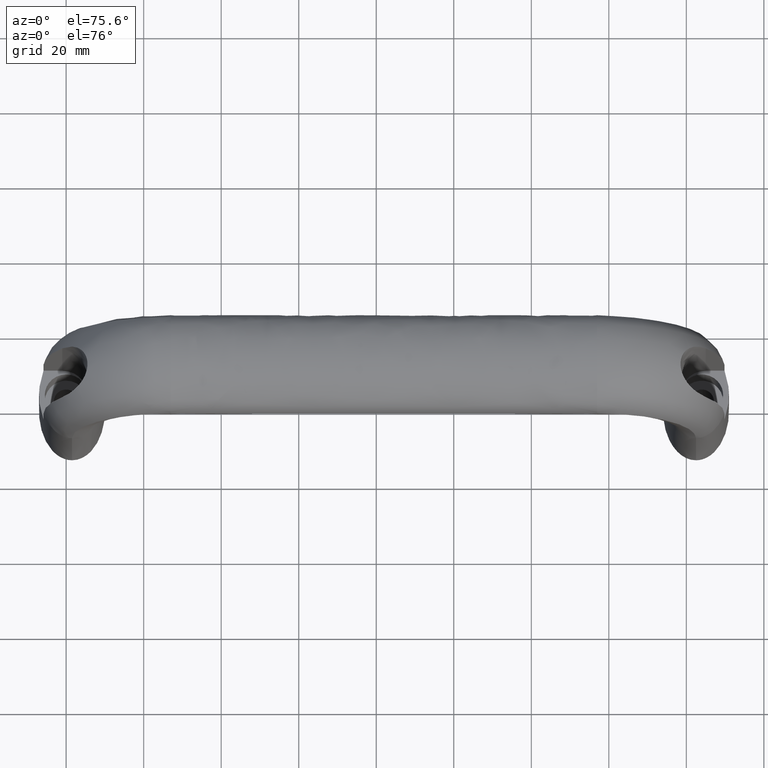
[diagram: clean part render]
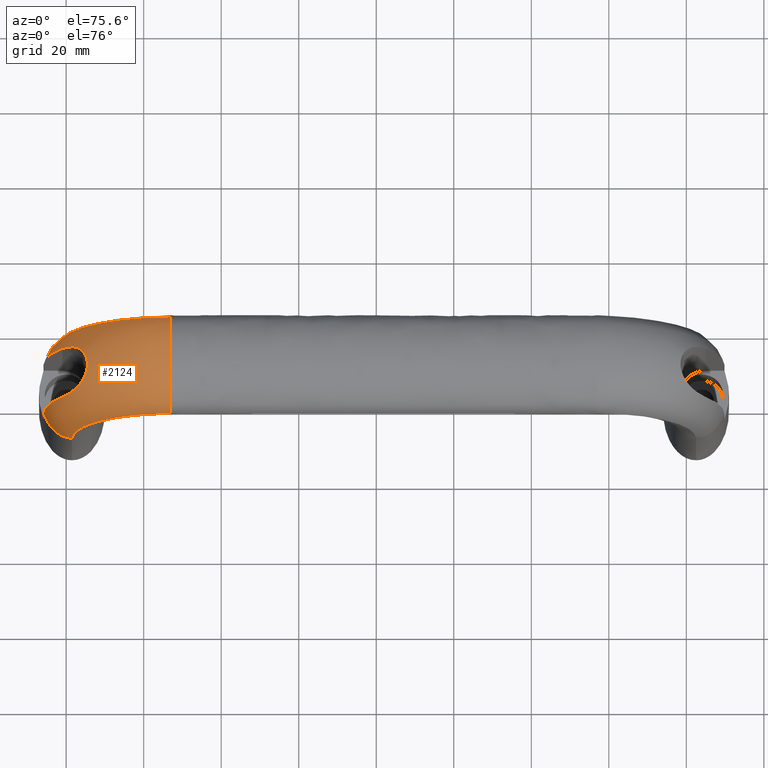
[diagram: same view with one face highlighted and labeled with its STEP entity id]
A machine part, auxiliary view. The second image highlights one B-rep face of the part: STEP entity #2124.
In plain terms, the highlighted face is a freeform B-spline surface patch.
Its self-contained STEP definition (entity closure, byte-faithful):
#1024=CARTESIAN_POINT('',(27.0,11.762630262052349,52.119074295047028));
#1025=VERTEX_POINT('',#1024);
#1035=CARTESIAN_POINT('',(27.0,-13.0,48.499999999999851));
#1036=VERTEX_POINT('',#1035);
#1037=CARTESIAN_POINT('',(27.0,11.762630262052349,52.119074295047028));
#1038=CARTESIAN_POINT('',(27.0,11.124518000685439,53.004805718184997));
#1039=CARTESIAN_POINT('',(27.0,10.251275255637010,53.818058382254627));
#1040=CARTESIAN_POINT('',(27.0,6.785826563922671,56.083928680683300));
#1041=CARTESIAN_POINT('',(27.0,3.403392041388941,57.0));
#1042=CARTESIAN_POINT('',(27.0,-3.403392041388945,57.0));
#1043=CARTESIAN_POINT('',(27.0,-6.785826563922671,56.083928680683300));
#1044=CARTESIAN_POINT('',(27.0,-10.395668951176340,53.723647119786612));
#1045=CARTESIAN_POINT('',(27.0,-11.359223048605340,52.780761333152498));
#1046=CARTESIAN_POINT('',(27.0,-12.661644796688099,50.724857017053687));
#1047=CARTESIAN_POINT('',(27.0,-13.0,49.612647398146201));
#1048=CARTESIAN_POINT('',(27.0,-13.0,48.499999999999851));
#1049=B_SPLINE_CURVE_WITH_KNOTS('',3,(#1037,#1038,#1039,#1040,#1041,#1042,#1043,#1044,#1045,#1046,#1047,#1048),.UNSPECIFIED.,.F.,.U.,(4,2,2,2,2,4),(0.570000000002555,0.625000000000000,0.750000000000000,0.875000000000000,0.937500000000000,1.0),.UNSPECIFIED.);
#1050=EDGE_CURVE('',#1025,#1036,#1049,.T.);
#1884=CARTESIAN_POINT('',(-2.015191606014526,11.837472741522920,22.772077983699070));
#1885=CARTESIAN_POINT('',(-2.941021045888543,11.192472187315589,22.764805348504989));
#1886=CARTESIAN_POINT('',(-3.790993518495217,10.292674817952870,22.758128589870520));
#1887=CARTESIAN_POINT('',(-6.083931553843240,6.785826548948687,22.740116955034889));
#1888=CARTESIAN_POINT('',(-7.000002992487918,3.403392041388941,22.732920971562841));
#1889=CARTESIAN_POINT('',(-7.000002992487918,-3.403392041388945,22.732920971562841));
#1890=CARTESIAN_POINT('',(-6.083931558394705,-6.785826563922671,22.740116954999131));
#1891=CARTESIAN_POINT('',(-3.723732224238013,-10.395615917115970,22.758656945130522));
#1892=CARTESIAN_POINT('',(-1.805021497206521,-12.356194588008250,22.773728925489920));
#1893=CARTESIAN_POINT('',(0.464058424733372,-13.022925095358231,22.791553148645111));
#1894=CARTESIAN_POINT('',(1.614823328544868,-13.0,22.800592711469768));
#1895=CARTESIAN_POINT('',(-2.045117619758962,11.837472741522920,26.646403690160689));
#1896=CARTESIAN_POINT('',(-2.971901381608391,11.192472187315589,26.762754728256841));
#1897=CARTESIAN_POINT('',(-3.822749962073325,10.292674817952870,26.869572652811271));
#1898=CARTESIAN_POINT('',(-6.118051377673653,6.785826548948687,27.157731257063421));
#1899=CARTESIAN_POINT('',(-7.035067006048025,3.403392041388941,27.272855984518650));
#1900=CARTESIAN_POINT('',(-7.035067006048025,-3.403392041388945,27.272855984518650));
#1901=CARTESIAN_POINT('',(-6.118051382230450,-6.785826563922671,27.157731257635849));
#1902=CARTESIAN_POINT('',(-3.755419339197669,-10.395615917115970,26.861119776892810));
#1903=CARTESIAN_POINT('',(-1.834730905786406,-12.356194588008250,26.619991147121699));
#1904=CARTESIAN_POINT('',(0.436688010049936,-13.022925095358231,26.334830842105770));
#1905=CARTESIAN_POINT('',(1.588639186175513,-13.0,26.190211664374949));
#1906=CARTESIAN_POINT('',(-0.547606563066964,11.837472741522911,34.327903146925699));
#1907=CARTESIAN_POINT('',(-1.426607829224392,11.192472187315589,34.689358840945012));
#1908=CARTESIAN_POINT('',(-2.233588957478176,10.292674817952870,35.021199001502303));
#1909=CARTESIAN_POINT('',(-4.410550916136987,6.785826548948689,35.916391434545908));
#1910=CARTESIAN_POINT('',(-5.280287760185487,3.403392041388940,36.274037479639247));
#1911=CARTESIAN_POINT('',(-5.280287760185487,-3.403392041388946,36.274037479639247));
#1912=CARTESIAN_POINT('',(-4.410550920457729,-6.785826563922673,35.916391436320730));
#1913=CARTESIAN_POINT('',(-2.169729718387603,-10.395615917115970,34.994939329094017));
#1914=CARTESIAN_POINT('',(-0.348066784979583,-12.356194588008250,34.245850039454332));
#1915=CARTESIAN_POINT('',(1.806243734148054,-13.022925095358231,33.359972119965391));
#1916=CARTESIAN_POINT('',(2.898803268384592,-13.0,32.910698734306870));
#1917=CARTESIAN_POINT('',(5.949023745978794,11.837472741522911,44.050990905263689));
#1918=CARTESIAN_POINT('',(5.277320044318284,11.192472187315589,44.722695077210084));
#1919=CARTESIAN_POINT('',(4.660651758451626,10.292674817952861,45.339363794941150));
#1920=CARTESIAN_POINT('',(2.997089458254052,6.785826548948686,47.002927260465157));
#1921=CARTESIAN_POINT('',(2.332465347413649,3.403392041388941,47.667551836997390));
#1922=CARTESIAN_POINT('',(2.332465347413649,-3.403392041388946,47.667551836997390));
#1923=CARTESIAN_POINT('',(2.997089454951574,-6.785826563922671,47.002927263770061));
#1924=CARTESIAN_POINT('',(4.709450876406007,-10.395615917115970,45.290564642809322));
#1925=CARTESIAN_POINT('',(6.101505434713951,-12.356194588008250,43.898509109608241));
#1926=CARTESIAN_POINT('',(7.747758325691228,-13.022925095358239,42.252255066430237));
#1927=CARTESIAN_POINT('',(8.582656226336511,-13.0,41.417356581694150));
#1928=CARTESIAN_POINT('',(15.672085034658011,11.837472741522920,50.547656479595283));
#1929=CARTESIAN_POINT('',(15.310628976954529,11.192472187315589,51.426659333949402));
#1930=CARTESIAN_POINT('',(14.978788483044999,10.292674817952870,52.233641920087450));
#1931=CARTESIAN_POINT('',(14.083595152189400,6.785826548948687,54.410607811142519));
#1932=CARTESIAN_POINT('',(13.725948748987610,3.403392041388941,55.280346226050007));
#1933=CARTESIAN_POINT('',(13.725948748987610,-3.403392041388945,55.280346226050007));
#1934=CARTESIAN_POINT('',(14.083595150412840,-6.785826563922671,54.410607815459301));
#1935=CARTESIAN_POINT('',(15.005048181810780,-10.395615917115970,52.169782565636247));
#1936=CARTESIAN_POINT('',(15.754138223913300,-12.356194588008250,50.348116341239418));
#1937=CARTESIAN_POINT('',(16.640017036688320,-13.022925095358231,48.193801929000372));
#1938=CARTESIAN_POINT('',(17.089290876564299,-13.000000000000011,47.101240419963972));
#1939=CARTESIAN_POINT('',(23.353610321464849,11.837472741522911,52.045106421895433));
#1940=CARTESIAN_POINT('',(23.237259727760570,11.192472187315589,52.971889830068143));
#1941=CARTESIAN_POINT('',(23.130442211079099,10.292674817952870,53.822738085987439));
#1942=CARTESIAN_POINT('',(22.842284706839170,6.785826548948686,56.118038626437361));
#1943=CARTESIAN_POINT('',(22.727160418740912,3.403392041388941,57.035053905342302));
#1944=CARTESIAN_POINT('',(22.727160418740912,-3.403392041388945,57.035053905342302));
#1945=CARTESIAN_POINT('',(22.842284706267112,-6.785826563922670,56.118038630998932));
#1946=CARTESIAN_POINT('',(23.138895054725790,-10.395615917115959,53.755407488782957));
#1947=CARTESIAN_POINT('',(23.380022763778900,-12.356194588008250,51.834719788002133));
#1948=CARTESIAN_POINT('',(23.665181979262581,-13.022925095358231,49.563301739500311));
#1949=CARTESIAN_POINT('',(23.809800604195139,-13.0,48.411351003569507));
#1950=CARTESIAN_POINT('',(27.227922016301640,11.837472741522920,52.015191606014390));
#1951=CARTESIAN_POINT('',(27.235194651495689,11.192472187315589,52.941021045888469));
#1952=CARTESIAN_POINT('',(27.241871410130258,10.292674817952870,53.790993518494453));
#1953=CARTESIAN_POINT('',(27.259883044965768,6.785826548948687,56.083931553843193));
#1954=CARTESIAN_POINT('',(27.267079028437941,3.403392041388941,57.000002992487481));
#1955=CARTESIAN_POINT('',(27.267079028437941,-3.403392041388945,57.000002992487481));
#1956=CARTESIAN_POINT('',(27.259883045001519,-6.785826563922671,56.083931558394653));
#1957=CARTESIAN_POINT('',(27.241343054870210,-10.395615917115970,53.723732224238042));
#1958=CARTESIAN_POINT('',(27.226271074510869,-12.356194588008250,51.805021497206113));
#1959=CARTESIAN_POINT('',(27.208446851355450,-13.022925095358231,49.535941575266669));
#1960=CARTESIAN_POINT('',(27.199407288531191,-13.0,48.385176671455113));
#1961=B_SPLINE_SURFACE_WITH_KNOTS('',3,3,((#1884,#1895,#1906,#1917,#1928,#1939,#1950),(#1885,#1896,#1907,#1918,#1929,#1940,#1951),(#1886,#1897,#1908,#1919,#1930,#1941,#1952),(#1887,#1898,#1909,#1920,#1931,#1942,#1953),(#1888,#1899,#1910,#1921,#1932,#1943,#1954),(#1889,#1900,#1911,#1922,#1933,#1944,#1955),(#1890,#1901,#1912,#1923,#1934,#1945,#1956),(#1891,#1902,#1913,#1924,#1935,#1946,#1957),(#1892,#1903,#1914,#1925,#1936,#1947,#1958),(#1893,#1904,#1915,#1926,#1937,#1948,#1959),(#1894,#1905,#1916,#1927,#1938,#1949,#1960)),.UNSPECIFIED.,.F.,.F.,.U.,(4,2,2,2,1,4),(4,1,1,1,4),(0.0,4.573624030442617,14.577129311881331,24.580634593320038,29.582387234039398,34.756200268319184),(0.0,13.501724842769709,26.738709988541348,39.975695134312993,53.477419977082810),.UNSPECIFIED.);
#1962=CARTESIAN_POINT('',(-2.119061428359717,11.762639531628810,23.0));
#1963=VERTEX_POINT('',#1962);
#1964=CARTESIAN_POINT('',(-5.853663332790940,6.500000001766840,23.0));
#1965=VERTEX_POINT('',#1964);
#1966=CARTESIAN_POINT('',(-2.119061428359717,11.762639531628810,23.0));
#1967=CARTESIAN_POINT('',(-3.004797842276316,11.124526457558011,23.0));
#1968=CARTESIAN_POINT('',(-3.818055029743332,10.251280383007350,23.0));
#1969=CARTESIAN_POINT('',(-5.034186361686605,8.391314816505867,23.0));
#1970=CARTESIAN_POINT('',(-5.485117837063482,7.482112059641453,23.0));
#1971=CARTESIAN_POINT('',(-5.853663332790940,6.500000001766840,23.0));
#1972=B_SPLINE_CURVE_WITH_KNOTS('',3,(#1966,#1967,#1968,#1969,#1970,#1971),.UNSPECIFIED.,.F.,.U.,(4,2,4),(0.884053007200591,0.950062492374965,1.0),.UNSPECIFIED.);
#1973=EDGE_CURVE('',#1963,#1965,#1972,.T.);
#1974=ORIENTED_EDGE('',*,*,#1973,.T.);
#1975=CARTESIAN_POINT('',(-0.999999659660800,6.500000000000000,40.182550955787697));
#1976=VERTEX_POINT('',#1975);
#1977=CARTESIAN_POINT('',(-5.853663332790940,6.500000001766840,23.0));
#1978=CARTESIAN_POINT('',(-5.853615839689607,6.500000000992468,27.301237588853720));
#1979=CARTESIAN_POINT('',(-4.998570350455873,6.500000000992468,31.599377028154372));
#1980=CARTESIAN_POINT('',(-2.691897913988758,6.500000000992468,37.168176908226243));
#1981=CARTESIAN_POINT('',(-1.903659909650826,6.500000000992468,38.710772836539533));
#1982=CARTESIAN_POINT('',(-0.999999659660800,6.500000000000000,40.182550955787697));
#1983=B_SPLINE_CURVE_WITH_KNOTS('',3,(#1977,#1978,#1979,#1980,#1981,#1982),.UNSPECIFIED.,.F.,.U.,(4,2,4),(0.097411970348334,0.139823560705181,0.156856022600892),.UNSPECIFIED.);
#1984=EDGE_CURVE('',#1965,#1976,#1983,.T.);
#1985=ORIENTED_EDGE('',*,*,#1984,.T.);
#1986=CARTESIAN_POINT('',(-1.000000113446392,-6.500000000000000,40.182550216713253));
#1987=VERTEX_POINT('',#1986);
#1988=CARTESIAN_POINT('',(-0.999999659660800,6.500000000000000,40.182550955787747));
#1989=CARTESIAN_POINT('',(-0.689212148844910,6.499999983727203,40.688726001645939));
#1990=CARTESIAN_POINT('',(-0.374074380296549,6.477785425598257,41.187421557439421));
#1991=CARTESIAN_POINT('',(0.262488891242817,6.384325234586878,42.170531536522397));
#1992=CARTESIAN_POINT('',(0.583925866554097,6.313138464686088,42.654950320836022));
#1993=CARTESIAN_POINT('',(1.230995628201276,6.114507088227550,43.609430675925552));
#1994=CARTESIAN_POINT('',(1.556647733264660,5.987184626634848,44.079504311941129));
#1995=CARTESIAN_POINT('',(2.046602886903751,5.744686039799285,44.773057522366429));
#1996=CARTESIAN_POINT('',(2.210164842668681,5.655217750466295,45.002307288333483));
#1997=CARTESIAN_POINT('',(2.455603465113815,5.506175280761351,45.343074262698472));
#1998=CARTESIAN_POINT('',(2.537431707710085,5.454014919379982,45.456144426742291));
#1999=CARTESIAN_POINT('',(2.701064545818242,5.344326248950312,45.681199800652763));
#2000=CARTESIAN_POINT('',(2.782463391266872,5.287066280820097,45.792626460227602));
#2001=CARTESIAN_POINT('',(3.024918382401251,5.107879077586278,46.123029253806912));
#2002=CARTESIAN_POINT('',(3.184385035236039,4.978481544635973,46.338335508962210));
#2003=CARTESIAN_POINT('',(3.497890927808591,4.697162315156406,46.758082588979548));
#2004=CARTESIAN_POINT('',(3.651938271928292,4.545260793289478,46.962530729863907));
#2005=CARTESIAN_POINT('',(3.877793305353103,4.297628859204111,47.259996590168512));
#2006=CARTESIAN_POINT('',(3.952377273146369,4.211552035269128,47.357836758812667));
#2007=CARTESIAN_POINT('',(4.098180937036750,4.033827256414346,47.548409190405337));
#2008=CARTESIAN_POINT('',(4.169507011159172,3.942084547748888,47.641283411165382));
#2009=CARTESIAN_POINT('',(4.378352653126534,3.657684516016102,47.912314583938439));
#2010=CARTESIAN_POINT('',(4.510778708483549,3.455918309653637,48.082929260104542));
#2011=CARTESIAN_POINT('',(4.759114652634498,3.024012525550366,48.401169739856968));
#2012=CARTESIAN_POINT('',(4.875062168485384,2.793933300345841,48.548842505953402));
#2013=CARTESIAN_POINT('',(5.006838583232684,2.484434826702882,48.716008334012528));
#2014=CARTESIAN_POINT('',(5.032523011742820,2.421428128307682,48.748553693818181));
#2015=CARTESIAN_POINT('',(5.081985660363040,2.294362328601272,48.811169059527863));
#2016=CARTESIAN_POINT('',(5.105829547923927,2.230153275361825,48.841322426329398));
#2017=CARTESIAN_POINT('',(5.174618423648687,2.035445828797676,48.928240975306487));
#2018=CARTESIAN_POINT('',(5.216825178698421,1.902870769857768,48.981470945867137));
#2019=CARTESIAN_POINT('',(5.293407274699323,1.631826382933991,49.077943866064281));
#2020=CARTESIAN_POINT('',(5.327784323615604,1.493358373352994,49.121189084219012));
#2021=CARTESIAN_POINT('',(5.372959097454730,1.280873046612088,49.177980361721623));
#2022=CARTESIAN_POINT('',(5.386950773523756,1.209246241039863,49.195562699377781));
#2023=CARTESIAN_POINT('',(5.412693802184408,1.064318962675391,49.227904743754841));
#2024=CARTESIAN_POINT('',(5.424395455934909,0.991255381210704,49.242602026076597));
#2025=CARTESIAN_POINT('',(5.476510859658674,0.626030642164848,49.308052901009631));
#2026=CARTESIAN_POINT('',(5.498365460041607,0.331247260050811,49.335504759766202));
#2027=CARTESIAN_POINT('',(5.500685463967548,-0.114926491503325,49.338422360161097));
#2028=CARTESIAN_POINT('',(5.496364534477560,-0.264320339306390,49.332987906280202));
#2029=CARTESIAN_POINT('',(5.481982360646124,-0.489447676386148,49.314921523041100));
#2030=CARTESIAN_POINT('',(5.475893441942525,-0.564221947234833,49.307274241052582));
#2031=CARTESIAN_POINT('',(5.461271958221396,-0.712395226708813,49.288912397387087));
#2032=CARTESIAN_POINT('',(5.452730863155055,-0.785931697212980,49.278187110910302));
#2033=CARTESIAN_POINT('',(5.404069319480133,-1.150949065449678,49.217076946034993));
#2034=CARTESIAN_POINT('',(5.346175626891933,-1.434482122556293,49.144381387513462));
#2035=CARTESIAN_POINT('',(5.252178125699976,-1.779149779381817,49.026010936180803));
#2036=CARTESIAN_POINT('',(5.232299424421165,-1.847536572698002,49.000963298570923));
#2037=CARTESIAN_POINT('',(5.190859146844407,-1.981971373917908,48.948707549796573));
#2038=CARTESIAN_POINT('',(5.169249764629010,-2.048200242321032,48.921439252129552));
#2039=CARTESIAN_POINT('',(5.101901569180241,-2.244073261752348,48.836379845470717));
#2040=CARTESIAN_POINT('',(5.053647675915732,-2.370909427895134,48.775340739073812));
#2041=CARTESIAN_POINT('',(4.899788877556438,-2.741156324960257,48.580279754859731));
#2042=CARTESIAN_POINT('',(4.785133574749118,-2.974358624392395,48.434376424370910));
#2043=CARTESIAN_POINT('',(4.628961276103481,-3.250973882337276,48.234397684332471));
#2044=CARTESIAN_POINT('',(4.597072493880335,-3.305552690280356,48.193506502105947));
#2045=CARTESIAN_POINT('',(4.532535350268729,-3.412470027413921,48.110622932884368));
#2046=CARTESIAN_POINT('',(4.499828071002050,-3.464915410397218,48.068555184552437));
#2047=CARTESIAN_POINT('',(4.400474460539134,-3.619373709386898,47.940563271219972));
#2048=CARTESIAN_POINT('',(4.332598890959305,-3.718514090269570,47.852853542949283));
#2049=CARTESIAN_POINT('',(4.124619575069391,-4.005509467769456,47.583160519186393));
#2050=CARTESIAN_POINT('',(3.980187369231783,-4.182989580838717,47.394643198459939));
#2051=CARTESIAN_POINT('',(3.681987212319193,-4.514273342381984,47.002282932336229));
#2052=CARTESIAN_POINT('',(3.528149307629407,-4.668105299015999,46.798348300513851));
#2053=CARTESIAN_POINT('',(3.212914731766456,-4.954461897900826,46.376737940981030));
#2054=CARTESIAN_POINT('',(3.053599758152162,-5.085126645488277,46.161847740631302));
#2055=CARTESIAN_POINT('',(2.572016970235992,-5.445312733363521,45.506308473313467));
#2056=CARTESIAN_POINT('',(2.246173696447793,-5.643332839045349,45.054876066561967));
#2057=CARTESIAN_POINT('',(1.753972416438583,-5.890615267477127,44.359115977191969));
#2058=CARTESIAN_POINT('',(1.589311987175764,-5.964654000133860,44.124067507545533));
#2059=CARTESIAN_POINT('',(1.341773398416585,-6.064157470542027,43.766992912909473));
#2060=CARTESIAN_POINT('',(1.259168636780405,-6.095396180565134,43.647216728746962));
#2061=CARTESIAN_POINT('',(1.093826960943868,-6.154151946863586,43.406182599728247));
#2062=CARTESIAN_POINT('',(1.011118282493236,-6.181654209393751,43.284964100595893));
#2063=CARTESIAN_POINT('',(0.599112147655572,-6.309672615146333,42.677795870842047));
#2064=CARTESIAN_POINT('',(0.272999962610312,-6.382418801646103,42.186583680926702));
#2065=CARTESIAN_POINT('',(-0.370530381847976,-6.477620447682546,41.193072184183478));
#2066=CARTESIAN_POINT('',(-0.687957040698289,-6.500000005446180,40.690770192111252));
#2067=CARTESIAN_POINT('',(-1.000000113446385,-6.500000000000000,40.182550216713310));
#2068=B_SPLINE_CURVE_WITH_KNOTS('',3,(#1988,#1989,#1990,#1991,#1992,#1993,#1994,#1995,#1996,#1997,#1998,#1999,#2000,#2001,#2002,#2003,#2004,#2005,#2006,#2007,#2008,#2009,#2010,#2011,#2012,#2013,#2014,#2015,#2016,#2017,#2018,#2019,#2020,#2021,#2022,#2023,#2024,#2025,#2026,#2027,#2028,#2029,#2030,#2031,#2032,#2033,#2034,#2035,#2036,#2037,#2038,#2039,#2040,#2041,#2042,#2043,#2044,#2045,#2046,#2047,#2048,#2049,#2050,#2051,#2052,#2053,#2054,#2055,#2056,#2057,#2058,#2059,#2060,#2061,#2062,#2063,#2064,#2065,#2066,#2067),.UNSPECIFIED.,.F.,.U.,(4,2,2,2,2,2,2,2,2,2,2,2,2,2,2,2,2,2,2,2,2,2,2,2,2,2,2,2,2,2,2,2,2,2,2,2,2,2,2,4),(0.0,0.062499999999999,0.124999999999997,0.187499999999996,0.218749999999995,0.234374999999995,0.249999999999995,0.281249999999995,0.312499999999995,0.328124999999995,0.343749999999995,0.374999999999995,0.406249999999995,0.414062499999995,0.421874999999995,0.437499999999995,0.453124999999995,0.460937499999995,0.468749999999995,0.499999999999996,0.515624999999996,0.523437499999996,0.531249999999996,0.562499999999996,0.570312499999997,0.578124999999997,0.593749999999997,0.624999999999997,0.632812499999997,0.640624999999997,0.656249999999998,0.687499999999999,0.718749999999999,0.750000000000000,0.812500000000002,0.843750000000002,0.859375000000002,0.875000000000002,0.937500000000001,1.0),.UNSPECIFIED.);
#2069=EDGE_CURVE('',#1976,#1987,#2068,.T.);
#2070=ORIENTED_EDGE('',*,*,#2069,.T.);
#2071=CARTESIAN_POINT('',(-5.853663334117200,-6.499999999999470,23.0));
#2072=VERTEX_POINT('',#2071);
#2073=CARTESIAN_POINT('',(-1.000000113446397,-6.499999999999999,40.182550216713253));
#2074=CARTESIAN_POINT('',(-1.903660173861398,-6.499999999999999,38.710772320293273));
#2075=CARTESIAN_POINT('',(-2.691898024956704,-6.499999999999998,37.168176641298352));
#2076=CARTESIAN_POINT('',(-4.998570350819394,-6.499999999999998,31.599377028251851));
#2077=CARTESIAN_POINT('',(-5.853615840061883,-6.499999999999998,27.301237588902470));
#2078=CARTESIAN_POINT('',(-5.853663334117200,-6.499999999999470,23.0));
#2079=B_SPLINE_CURVE_WITH_KNOTS('',3,(#2073,#2074,#2075,#2076,#2077,#2078),.UNSPECIFIED.,.F.,.U.,(4,2,4),(0.097411970348334,0.114444429393014,0.156856019749861),.UNSPECIFIED.);
#2080=EDGE_CURVE('',#1987,#2072,#2079,.T.);
#2081=ORIENTED_EDGE('',*,*,#2080,.T.);
#2082=CARTESIAN_POINT('',(1.500000000000140,-13.0,23.0));
#2083=VERTEX_POINT('',#2082);
#2084=CARTESIAN_POINT('',(-5.853663334117200,-6.499999999999470,23.0));
#2085=CARTESIAN_POINT('',(-5.485117837596774,-7.482112058566183,23.0));
#2086=CARTESIAN_POINT('',(-5.034186361996326,-8.391314816032171,23.0));
#2087=CARTESIAN_POINT('',(-3.723647119786675,-10.395668951176340,23.0));
#2088=CARTESIAN_POINT('',(-2.780761333152545,-11.359223048605340,23.0));
#2089=CARTESIAN_POINT('',(-0.724857017053780,-12.661644796688099,23.0));
#2090=CARTESIAN_POINT('',(0.387352601853718,-13.0,23.0));
#2091=CARTESIAN_POINT('',(1.500000000000104,-13.0,23.0));
#2092=B_SPLINE_CURVE_WITH_KNOTS('',3,(#2084,#2085,#2086,#2087,#2088,#2089,#2090,#2091),.UNSPECIFIED.,.F.,.U.,(4,2,2,4),(0.0,0.049937507654564,0.124947923047931,0.199958338441298),.UNSPECIFIED.);
#2093=EDGE_CURVE('',#2072,#2083,#2092,.T.);
#2094=ORIENTED_EDGE('',*,*,#2093,.T.);
#2095=CARTESIAN_POINT('',(1.500000000000154,-13.0,23.0));
#2096=CARTESIAN_POINT('',(1.500032745947582,-13.0,26.338487934503370));
#2097=CARTESIAN_POINT('',(2.163696795463587,-13.0,29.674571173098371));
#2098=CARTESIAN_POINT('',(4.718447046461086,-13.0,35.842283877520977));
#2099=CARTESIAN_POINT('',(6.608495612153591,-13.0,38.670941452671578));
#2100=CARTESIAN_POINT('',(11.329058547332741,-13.0,43.391504387842048));
#2101=CARTESIAN_POINT('',(14.157716122458790,-13.0,45.281552953521953));
#2102=CARTESIAN_POINT('',(20.325428826921950,-13.0,47.836303204553452));
#2103=CARTESIAN_POINT('',(23.661512065481379,-13.0,48.499967254052613));
#2104=CARTESIAN_POINT('',(27.0,-13.0,48.499999999999851));
#2105=B_SPLINE_CURVE_WITH_KNOTS('',3,(#2095,#2096,#2097,#2098,#2099,#2100,#2101,#2102,#2103,#2104),.UNSPECIFIED.,.F.,.U.,(4,2,2,2,4),(0.097411970348334,0.139823560705181,0.182235151062028,0.224646741418875,0.267058331775723),.UNSPECIFIED.);
#2106=EDGE_CURVE('',#2083,#1036,#2105,.T.);
#2107=ORIENTED_EDGE('',*,*,#2106,.T.);
#2108=ORIENTED_EDGE('',*,*,#1050,.F.);
#2109=CARTESIAN_POINT('',(-2.119061428359717,11.762639531628810,23.0));
#2110=CARTESIAN_POINT('',(-2.119022407721757,11.762638924830910,26.812301103459479));
#2111=CARTESIAN_POINT('',(-1.361171660239219,11.762638197851629,30.621856230460349));
#2112=CARTESIAN_POINT('',(1.556157996607505,11.762636612488160,37.664918366565928));
#2113=CARTESIAN_POINT('',(3.714449535768110,11.762635754833109,40.895031703267279));
#2114=CARTESIAN_POINT('',(9.104973539139522,11.762634038848050,46.285558088512403));
#2115=CARTESIAN_POINT('',(12.335085685348011,11.762633181192999,48.443850818134713));
#2116=CARTESIAN_POINT('',(19.378145620912111,11.762631595829530,51.361182675585340));
#2117=CARTESIAN_POINT('',(23.187699738797981,11.762630868850250,52.119034432141987));
#2118=CARTESIAN_POINT('',(27.0,11.762630262052349,52.119074295047028));
#2119=B_SPLINE_CURVE_WITH_KNOTS('',3,(#2109,#2110,#2111,#2112,#2113,#2114,#2115,#2116,#2117,#2118),.UNSPECIFIED.,.F.,.U.,(4,2,2,2,4),(0.097411970348334,0.139823560705181,0.182235151062028,0.224646741418875,0.267058331775723),.UNSPECIFIED.);
#2120=EDGE_CURVE('',#1963,#1025,#2119,.T.);
#2121=ORIENTED_EDGE('',*,*,#2120,.F.);
#2122=EDGE_LOOP('',(#1974,#1985,#2070,#2081,#2094,#2107,#2108,#2121));
#2123=FACE_OUTER_BOUND('',#2122,.T.);
#2124=ADVANCED_FACE('',(#2123),#1961,.T.);